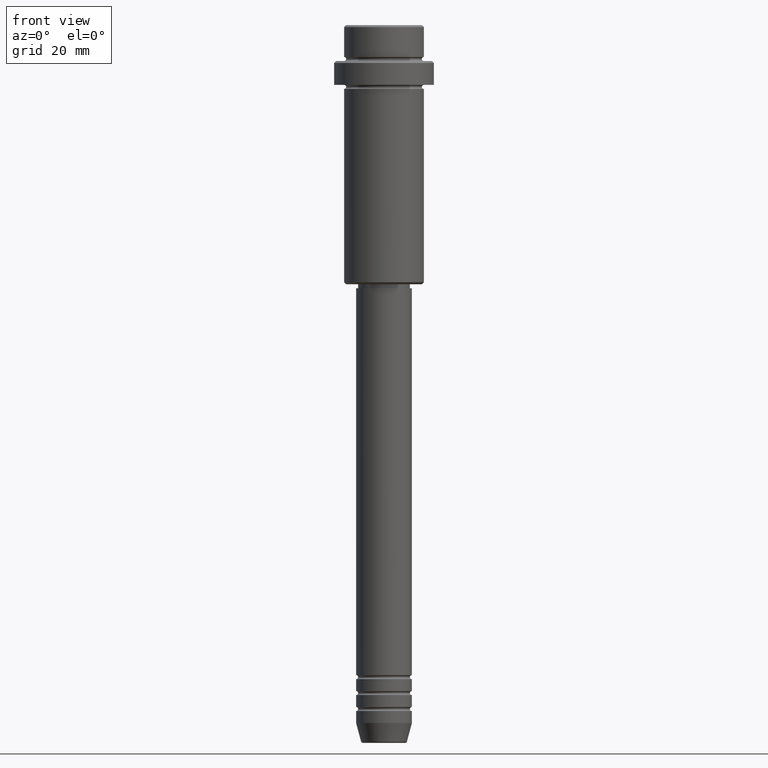
[diagram: clean part render]
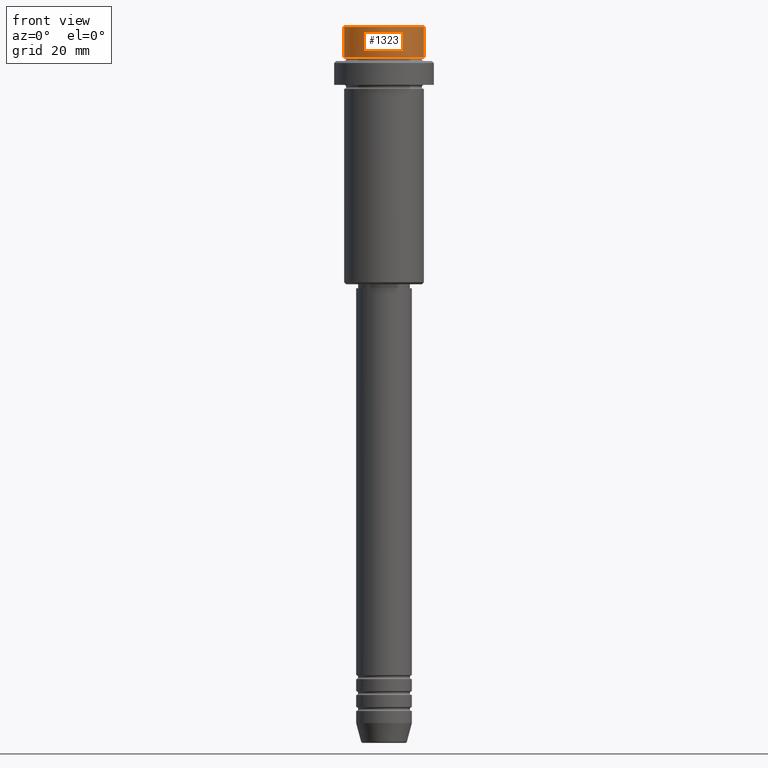
[diagram: same view with one face highlighted and labeled with its STEP entity id]
A machine part, front view. The second image highlights one B-rep face of the part: STEP entity #1323.
In plain terms, the highlighted cylindrical surface (partial cylindrical patch) has radius 10 mm, axis along (-0, -0, 1).
Its self-contained STEP definition (entity closure, byte-faithful):
#87 = CIRCLE ( 'NONE', #916, 9.999999999999998224 ) ;
#90 = VECTOR ( 'NONE', #714, 1000.000000000000000 ) ;
#150 = CARTESIAN_POINT ( 'NONE',  ( 9.999999999999998224, 0.000000000000000000, -7.999999999999998224 ) ) ;
#177 = CARTESIAN_POINT ( 'NONE',  ( 0.000000000000000000, 0.000000000000000000, 0.000000000000000000 ) ) ;
#203 = AXIS2_PLACEMENT_3D ( 'NONE', #731, #419, #621 ) ;
#207 = VERTEX_POINT ( 'NONE', #237 ) ;
#237 = CARTESIAN_POINT ( 'NONE',  ( 9.999999999999998224, 0.000000000000000000, -0.4999999999999970024 ) ) ;
#267 = EDGE_CURVE ( 'NONE', #1151, #880, #87, .T. ) ;
#278 = DIRECTION ( 'NONE',  ( 1.000000000000000000, 0.000000000000000000, 0.000000000000000000 ) ) ;
#314 = EDGE_CURVE ( 'NONE', #207, #1243, #818, .T. ) ;
#322 = FACE_OUTER_BOUND ( 'NONE', #857, .T. ) ;
#361 = CARTESIAN_POINT ( 'NONE',  ( -9.999999999999998224, 1.224646799147353059E-15, -7.999999999999998224 ) ) ;
#374 = LINE ( 'NONE', #1118, #896 ) ;
#419 = DIRECTION ( 'NONE',  ( 0.000000000000000000, 0.000000000000000000, -1.000000000000000000 ) ) ;
#497 = CARTESIAN_POINT ( 'NONE',  ( 9.999999999999998224, 0.000000000000000000, 0.000000000000000000 ) ) ;
#546 = ORIENTED_EDGE ( 'NONE', *, *, #314, .T. ) ;
#621 = DIRECTION ( 'NONE',  ( 1.000000000000000000, 0.000000000000000000, 0.000000000000000000 ) ) ;
#688 = DIRECTION ( 'NONE',  ( -0.000000000000000000, -0.000000000000000000, 1.000000000000000000 ) ) ;
#700 = ORIENTED_EDGE ( 'NONE', *, *, #267, .T. ) ;
#714 = DIRECTION ( 'NONE',  ( -0.000000000000000000, -0.000000000000000000, 1.000000000000000000 ) ) ;
#727 = LINE ( 'NONE', #497, #90 ) ;
#731 = CARTESIAN_POINT ( 'NONE',  ( 0.000000000000000000, 0.000000000000000000, -0.4999999999999970024 ) ) ;
#811 = ORIENTED_EDGE ( 'NONE', *, *, #1228, .F. ) ;
#818 = CIRCLE ( 'NONE', #203, 9.999999999999998224 ) ;
#841 = DIRECTION ( 'NONE',  ( -0.000000000000000000, -0.000000000000000000, 1.000000000000000000 ) ) ;
#855 = EDGE_CURVE ( 'NONE', #880, #207, #727, .T. ) ;
#857 = EDGE_LOOP ( 'NONE', ( #811, #700, #1140, #546 ) ) ;
#880 = VERTEX_POINT ( 'NONE', #150 ) ;
#896 = VECTOR ( 'NONE', #688, 1000.000000000000000 ) ;
#916 = AXIS2_PLACEMENT_3D ( 'NONE', #1164, #1259, #278 ) ;
#1087 = CYLINDRICAL_SURFACE ( 'NONE', #1310, 9.999999999999998224 ) ;
#1118 = CARTESIAN_POINT ( 'NONE',  ( -9.999999999999998224, 1.224646799147353059E-15, 0.000000000000000000 ) ) ;
#1126 = CARTESIAN_POINT ( 'NONE',  ( -9.999999999999998224, 1.224646799147353059E-15, -0.4999999999999970024 ) ) ;
#1140 = ORIENTED_EDGE ( 'NONE', *, *, #855, .T. ) ;
#1151 = VERTEX_POINT ( 'NONE', #361 ) ;
#1164 = CARTESIAN_POINT ( 'NONE',  ( 0.000000000000000000, 0.000000000000000000, -7.999999999999998224 ) ) ;
#1228 = EDGE_CURVE ( 'NONE', #1151, #1243, #374, .T. ) ;
#1243 = VERTEX_POINT ( 'NONE', #1126 ) ;
#1259 = DIRECTION ( 'NONE',  ( -0.000000000000000000, -0.000000000000000000, 1.000000000000000000 ) ) ;
#1291 = DIRECTION ( 'NONE',  ( 1.000000000000000000, 0.000000000000000000, 0.000000000000000000 ) ) ;
#1310 = AXIS2_PLACEMENT_3D ( 'NONE', #177, #841, #1291 ) ;
#1323 = ADVANCED_FACE ( 'NONE', ( #322 ), #1087, .T. ) ;